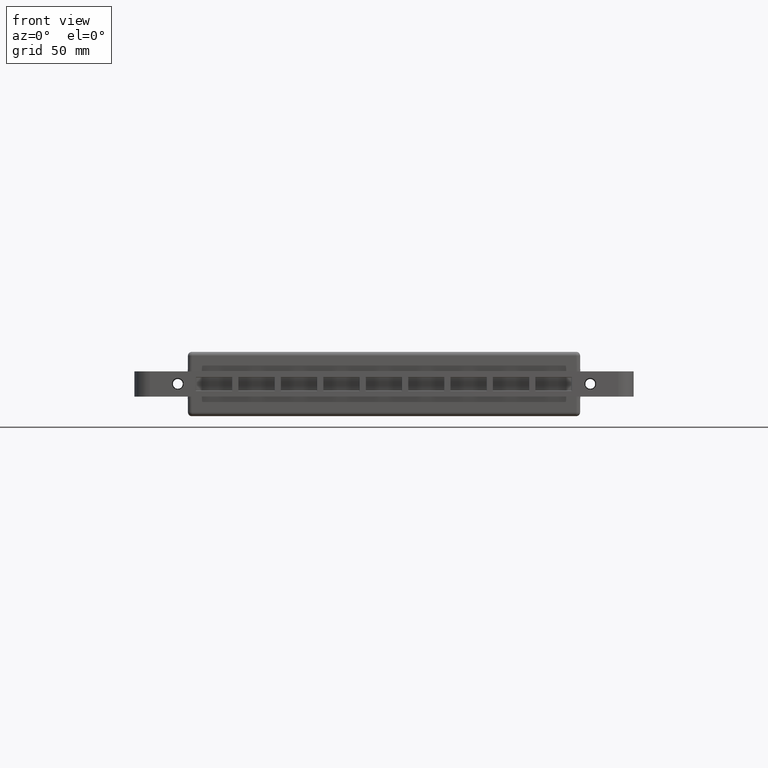
[diagram: clean part render]
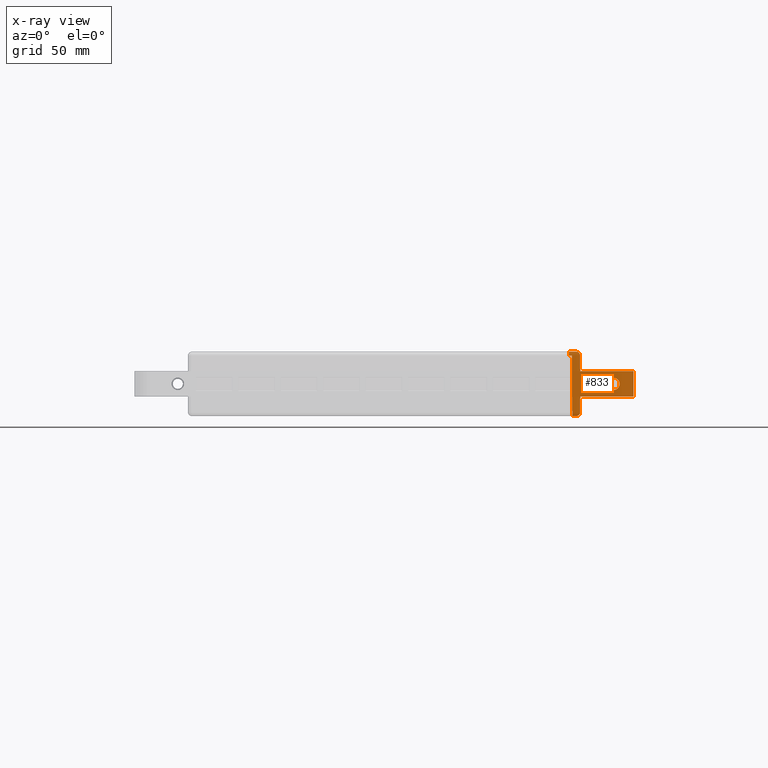
[diagram: x-ray — body ghosted, one internal face saturated and labeled with its STEP entity id]
A machine part, front view, then the same camera in x-ray: the body is ghosted and one INTERNAL B-rep face — a face not visible from any outside direction — is saturated and labeled: STEP entity #833.
In plain terms, the highlighted planar face has unit normal (0, 1, 0).
Its self-contained STEP definition (entity closure, byte-faithful):
#331=FACE_BOUND('',#1972,.T.);
#332=FACE_BOUND('',#1973,.T.);
#333=FACE_BOUND('',#1974,.T.);
#529=CIRCLE('',#8080,2.55);
#530=CIRCLE('',#8081,2.55);
#531=CIRCLE('',#8082,2.);
#532=CIRCLE('',#8083,2.);
#533=CIRCLE('',#8084,3.1);
#833=ADVANCED_FACE('',(#331,#332,#333),#1200,.F.);
#1200=PLANE('',#8085);
#1972=EDGE_LOOP('',(#3289,#3290));
#1973=EDGE_LOOP('',(#3291,#3292,#3293,#3294,#3295,#3296,#3297,#3298,#3299,
#3300,#3301,#3302));
#1974=EDGE_LOOP('',(#3303));
#3289=ORIENTED_EDGE('',*,*,#5560,.F.);
#3290=ORIENTED_EDGE('',*,*,#5561,.F.);
#3291=ORIENTED_EDGE('',*,*,#5562,.F.);
#3292=ORIENTED_EDGE('',*,*,#5563,.F.);
#3293=ORIENTED_EDGE('',*,*,#5564,.F.);
#3294=ORIENTED_EDGE('',*,*,#5565,.F.);
#3295=ORIENTED_EDGE('',*,*,#5566,.F.);
#3296=ORIENTED_EDGE('',*,*,#5567,.F.);
#3297=ORIENTED_EDGE('',*,*,#5568,.F.);
#3298=ORIENTED_EDGE('',*,*,#5569,.F.);
#3299=ORIENTED_EDGE('',*,*,#5570,.F.);
#3300=ORIENTED_EDGE('',*,*,#5571,.F.);
#3301=ORIENTED_EDGE('',*,*,#5572,.F.);
#3302=ORIENTED_EDGE('',*,*,#5573,.F.);
#3303=ORIENTED_EDGE('',*,*,#5574,.F.);
#4683=VERTEX_POINT('',#11552);
#4684=VERTEX_POINT('',#11553);
#4685=VERTEX_POINT('',#11556);
#4686=VERTEX_POINT('',#11557);
#4687=VERTEX_POINT('',#11559);
#4688=VERTEX_POINT('',#11561);
#4689=VERTEX_POINT('',#11563);
#4690=VERTEX_POINT('',#11565);
#4691=VERTEX_POINT('',#11567);
#4692=VERTEX_POINT('',#11569);
#4693=VERTEX_POINT('',#11571);
#4694=VERTEX_POINT('',#11573);
#4695=VERTEX_POINT('',#11575);
#4696=VERTEX_POINT('',#11577);
#4697=VERTEX_POINT('',#11580);
#5560=EDGE_CURVE('',#4683,#4684,#529,.T.);
#5561=EDGE_CURVE('',#4684,#4683,#530,.T.);
#5562=EDGE_CURVE('',#4685,#4686,#6502,.T.);
#5563=EDGE_CURVE('',#4687,#4685,#6503,.T.);
#5564=EDGE_CURVE('',#4688,#4687,#6504,.T.);
#5565=EDGE_CURVE('',#4689,#4688,#6505,.T.);
#5566=EDGE_CURVE('',#4690,#4689,#531,.T.);
#5567=EDGE_CURVE('',#4691,#4690,#6506,.T.);
#5568=EDGE_CURVE('',#4692,#4691,#6507,.T.);
#5569=EDGE_CURVE('',#4693,#4692,#6508,.T.);
#5570=EDGE_CURVE('',#4694,#4693,#6509,.T.);
#5571=EDGE_CURVE('',#4695,#4694,#6510,.T.);
#5572=EDGE_CURVE('',#4696,#4695,#532,.T.);
#5573=EDGE_CURVE('',#4686,#4696,#6511,.T.);
#5574=EDGE_CURVE('',#4697,#4697,#533,.T.);
#6502=LINE('',#11555,#7348);
#6503=LINE('',#11558,#7349);
#6504=LINE('',#11560,#7350);
#6505=LINE('',#11562,#7351);
#6506=LINE('',#11566,#7352);
#6507=LINE('',#11568,#7353);
#6508=LINE('',#11570,#7354);
#6509=LINE('',#11572,#7355);
#6510=LINE('',#11574,#7356);
#6511=LINE('',#11578,#7357);
#7348=VECTOR('',#9426,1.);
#7349=VECTOR('',#9427,1.);
#7350=VECTOR('',#9428,1.);
#7351=VECTOR('',#9429,1.);
#7352=VECTOR('',#9432,1.);
#7353=VECTOR('',#9433,1.);
#7354=VECTOR('',#9434,1.);
#7355=VECTOR('',#9435,1.);
#7356=VECTOR('',#9436,1.);
#7357=VECTOR('',#9439,1.);
#8080=AXIS2_PLACEMENT_3D('',#11551,#9422,#9423);
#8081=AXIS2_PLACEMENT_3D('',#11554,#9424,#9425);
#8082=AXIS2_PLACEMENT_3D('',#11564,#9430,#9431);
#8083=AXIS2_PLACEMENT_3D('',#11576,#9437,#9438);
#8084=AXIS2_PLACEMENT_3D('',#11579,#9440,#9441);
#8085=AXIS2_PLACEMENT_3D('',#11581,#9442,#9443);
#9422=DIRECTION('',(0.,-1.,0.));
#9423=DIRECTION('',(0.,0.,1.));
#9424=DIRECTION('',(0.,-1.,0.));
#9425=DIRECTION('',(0.,0.,1.));
#9426=DIRECTION('',(-1.,0.,0.));
#9427=DIRECTION('',(0.,0.,-1.));
#9428=DIRECTION('',(1.,0.,0.));
#9429=DIRECTION('',(0.00872653549837433,0.,-0.999961923064171));
#9430=DIRECTION('',(1.831296E-16,1.,-8.008702E-32));
#9431=DIRECTION('',(1.,0.,1.73472347597681E-15));
#9432=DIRECTION('',(1.,0.,0.));
#9433=DIRECTION('',(0.,0.,1.));
#9434=DIRECTION('',(-1.,0.,-2.81509942872693E-17));
#9435=DIRECTION('',(-0.00872653549837401,0.,0.999961923064171));
#9436=DIRECTION('',(-1.,0.,0.));
#9437=DIRECTION('',(1.831296E-16,1.,0.));
#9438=DIRECTION('',(-1.,0.,0.));
#9439=DIRECTION('',(-0.00872653549837438,0.,-0.999961923064171));
#9440=DIRECTION('',(0.,-1.,0.));
#9441=DIRECTION('',(0.,0.,1.));
#9442=DIRECTION('',(0.,1.,0.));
#9443=DIRECTION('',(0.,0.,-1.));
#11551=CARTESIAN_POINT('',(95.7239988864246,-22.9999999999999,16.4999999999995));
#11552=CARTESIAN_POINT('',(95.7239988864247,-22.9999999999999,13.9499999999995));
#11553=CARTESIAN_POINT('',(95.7239988864247,-22.9999999999999,19.0499999999995));
#11554=CARTESIAN_POINT('',(95.7239988864247,-22.9999999999999,16.4999999999995));
#11555=CARTESIAN_POINT('',(40.,-22.9999999999999,9.99999999999956));
#11556=CARTESIAN_POINT('',(118.,-22.9999999999999,10.));
#11557=CARTESIAN_POINT('',(90.5872686779076,-22.9999999999999,9.99999999999956));
#11558=CARTESIAN_POINT('',(118.,-22.9999999999999,-4.44089209850063E-13));
#11559=CARTESIAN_POINT('',(118.,-22.9999999999999,22.9999999999996));
#11560=CARTESIAN_POINT('',(40.,-22.9999999999999,22.9999999999995));
#11561=CARTESIAN_POINT('',(90.5872686779076,-22.9999999999999,22.9999999999997));
#11562=CARTESIAN_POINT('',(90.5173014249384,-22.9999999999999,31.0174530709963));
#11563=CARTESIAN_POINT('',(90.5173014249384,-22.9999999999999,31.0174530709965));
#11564=CARTESIAN_POINT('',(88.5173775788101,-22.9999999999999,30.9999999999995));
#11565=CARTESIAN_POINT('',(88.5173775788101,-22.9999999999999,32.9999999999996));
#11566=CARTESIAN_POINT('',(40.,-22.9999999999999,32.9999999999996));
#11567=CARTESIAN_POINT('',(84.8,-22.9999999999999,32.9999999999997));
#11568=CARTESIAN_POINT('',(84.8,-22.9999999999999,-4.44089209850063E-13));
#11569=CARTESIAN_POINT('',(84.8,-22.9999999999999,30.9999999999996));
#11570=CARTESIAN_POINT('',(46.2294670984865,-22.9999999999999,31.));
#11571=CARTESIAN_POINT('',(86.2294670984865,-22.9999999999999,30.9999999999996));
#11572=CARTESIAN_POINT('',(86.3603701153479,-22.9999999999999,15.9999999999995));
#11573=CARTESIAN_POINT('',(86.5,-22.9999999999999,0.));
#11574=CARTESIAN_POINT('',(40.,-22.9999999999999,-4.44089209850063E-13));
#11575=CARTESIAN_POINT('',(88.5173775788101,-22.9999999999999,-2.22044604925031E-13));
#11576=CARTESIAN_POINT('',(88.5173775788101,-22.9999999999999,1.99999999999956));
#11577=CARTESIAN_POINT('',(90.5173014249384,-22.9999999999999,1.98254692900281));
#11578=CARTESIAN_POINT('',(90.5872686779076,-22.9999999999999,9.99999999999956));
#11579=CARTESIAN_POINT('',(107.723998886425,-22.9999999999999,16.4999999999995));
#11580=CARTESIAN_POINT('',(107.723998886425,-22.9999999999999,19.5999999999995));
#11581=CARTESIAN_POINT('',(40.,-22.9999999999999,-4.44089209850063E-13));